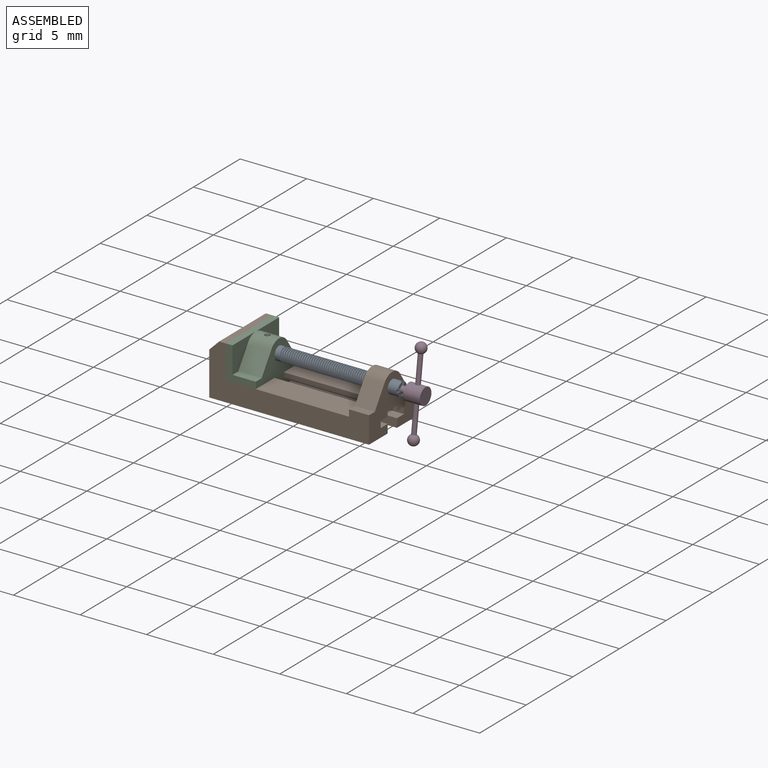
[diagram: assembled view]
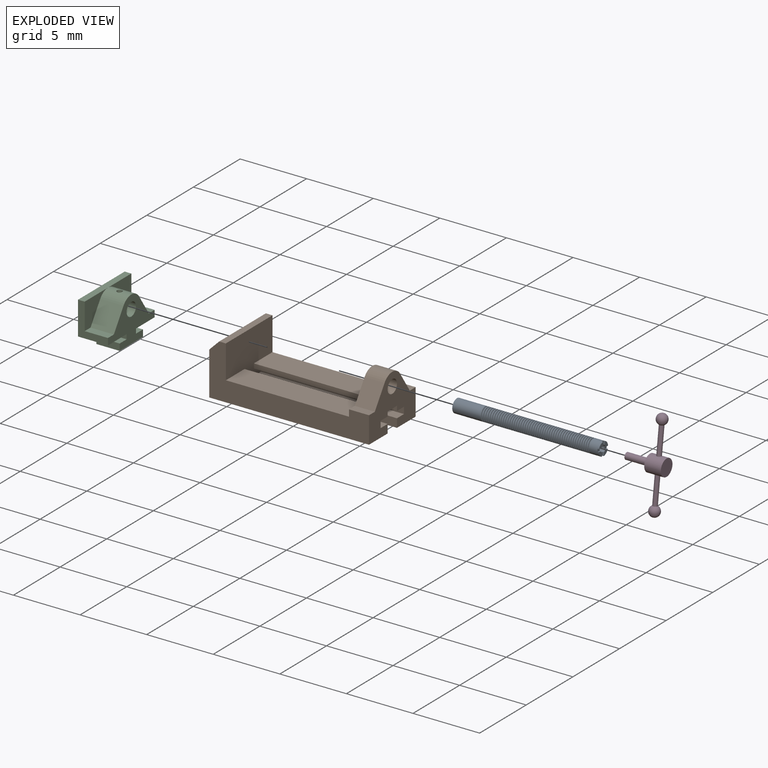
[diagram: exploded view]
GUIDED TOUR — MATED ASSEMBLY (Onshape document 5d08d16b54162cd27bfd7267, AutoMate assembly 5d08d16b54162cd27bfd7267_589e3b4b77a5842be3f8a55e_1819c7f877d3e1bd77064605_default)

This assembly has 4 components, labeled P0..P3 below (a component is one placed occurrence of a part; the same part can appear more than once), held together by 3 mates. A mate is a constraint between two components; its type names the relative motion it leaves free:
  FASTENED — locks the two components together rigidly (no relative motion),
  REVOLUTE — leaves rotation about the listed axis free (a hinge),
  SLIDER — leaves translation along the listed axis free.
Axis/direction vectors are unit vectors and 'through' points are millimeter coordinates, both in the assembly's world frame.

MATES
  1. SLIDER "Slider 1": P1 <-> P2, axis (-1.000, 0.000, 0.000) through (-4.62, -0.62, 0.49) mm
  2. FASTENED "Fastened 1": P3 <-> P0, direction (1.000, 0.000, 0.000) through (6.50, 1.88, 1.99) mm
  3. REVOLUTE "Revolute 1": P2 <-> P0, axis (-1.000, 0.000, 0.000) through (-4.13, 1.88, 1.99) mm

ASSEMBLY ORDER
  1. P1 — the base component [order verified]
  2. P0 [order verified]
  3. P2 [order verified]
  4. P3 [order verified]
(P2 verified with a relaxed clearance tolerance: the source model stores slight part interference there.)
Order-tag legend:
  [order verified] — this step's position reverses a verified removal order: the component was checked to insert without passing through the ones already placed.

Of the 4 components, 3 carry the full construction recipe — the FeatureScript program that regenerates the part's solid from scratch; the rest are supplied as boundary geometry only.
Each toured component is shown spotlighted twice — in the assembled view, then in the exploded view, where a leader line traces a displaced component back to its assembled socket (saturated green if recipe-attached, orange if geometry-only; every other component desaturated gray) — followed by its recipe or geometry summary and the mates that hold it.
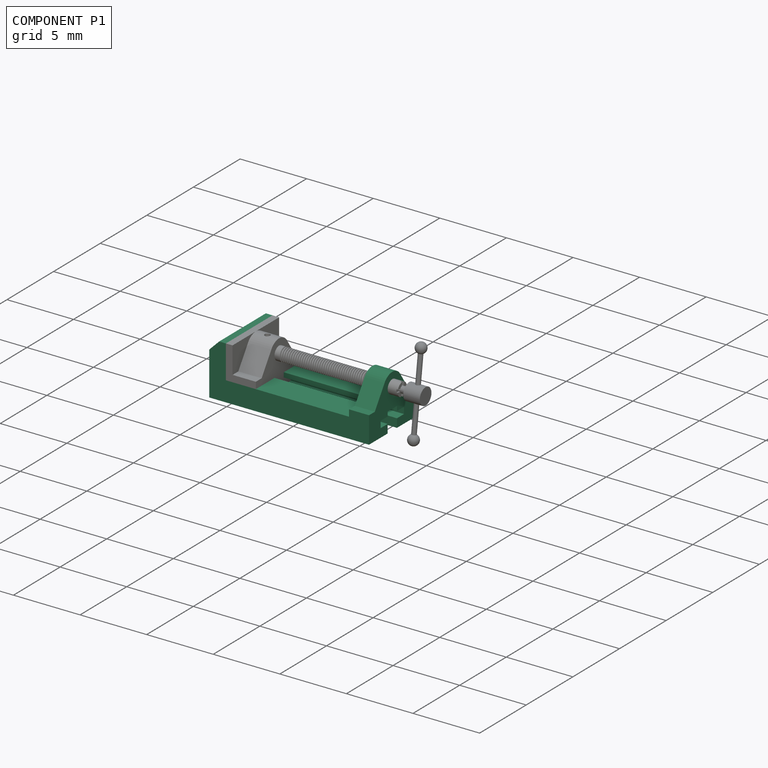
[diagram: component P1 — assembled]
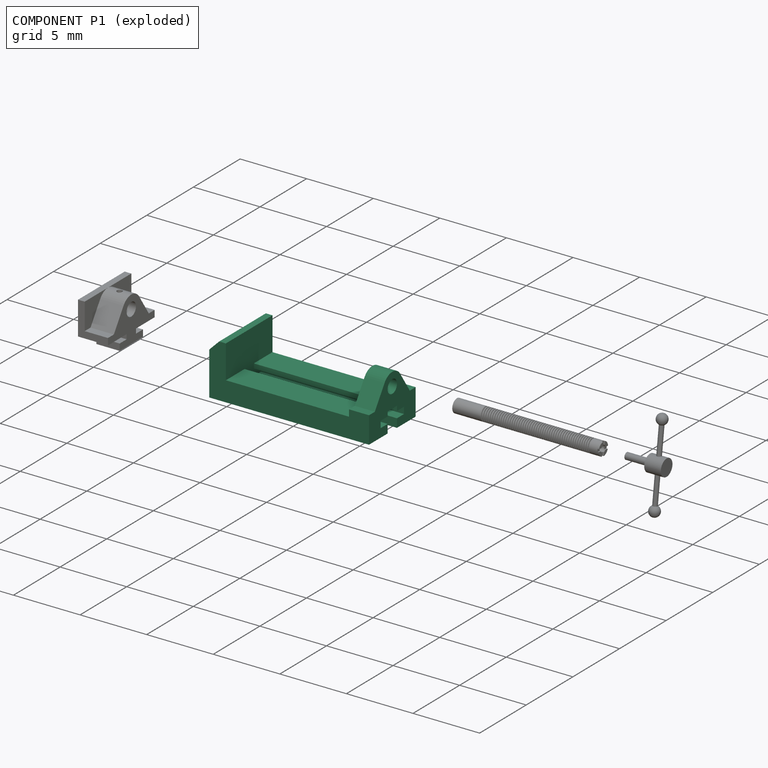
[diagram: component P1 — exploded]
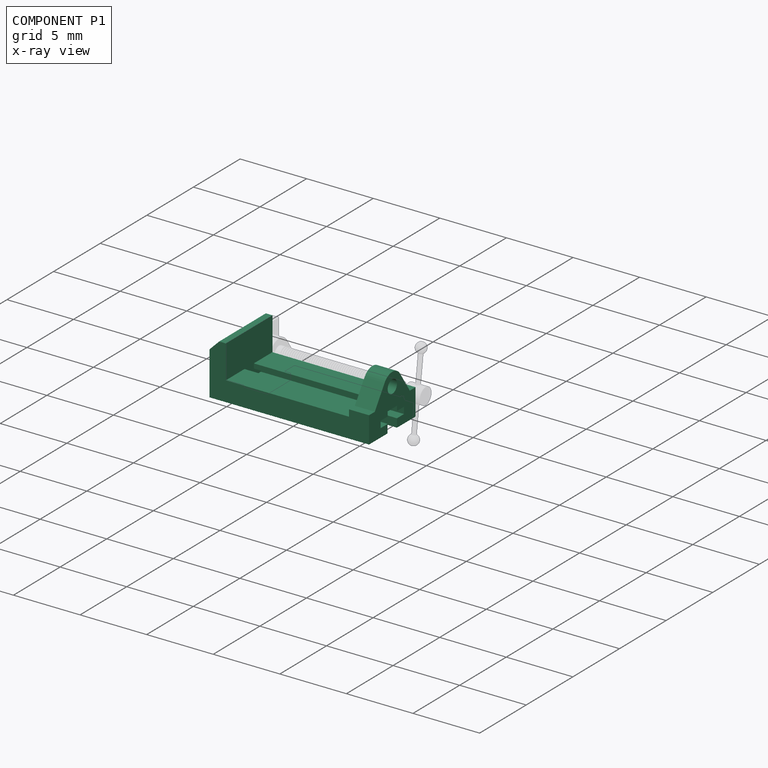
[diagram: component P1 — x-ray view]
COMPONENT P1 — recipe-attached (CADFS 00304340, mesh-verified: the recipe's output STEP matches this component's geometry to below the mesh-comparison resolution (tessellation chordal tolerance ~0.0204 mm)).
Held by: SLIDER mate "Slider 1" to P2.
Construction recipe (FeatureScript — the CAD program that rebuilds this solid; sketch coordinates are in the units given by the * unit suffixes, e.g. mm):

FeatureScript 1511;
import(path : "onshape/std/geometry.fs", version : "1511.0");
import(path : "onshape/std/common.fs", version : "1511.0");
const mm = millimeter;
const VERTEX = EntityType.VERTEX;
const EDGE = EntityType.EDGE;
const FACE = EntityType.FACE;
const BODY = EntityType.BODY;
function v(x, y){return vector(x, y);}
function OD(order){return orderDisambiguation(order);}
function OSD(set){return originalSetDisambiguation(set);}
function TD(topology){return topologyDisambiguation(topology);}
function TDD(query){return trueDependencyDisambiguation(query);}
function sQuery(a, b, c) {return sketchEntityQuery(a, b, c);}

annotation { "Feature Type Name" : "Feature", "Feature Type Description" : "" }
export const myFeature = defineFeature(function(context is Context, id is Id, definition is map)
    precondition{}
    {
        {
            var Q0;
            Q0=qCreatedBy(makeId("Right.planeOp"),FACE);
            var sketch = newSketch(context, id + "F0", { "sketchPlane" : qUnion([Q0])});
            skLineSegment(sketch, "E0.bottom", {"start": v(0, 0) * mm, "end": v(5, 0) * mm});
            skLineSegment(sketch, "E0.top", {"start": v(0, 1.5) * mm, "end": v(5, 1.5) * mm});
            skLineSegment(sketch, "E0.left", {"start": v(0, 0) * mm, "end": v(0, 1.5) * mm});
            skLineSegment(sketch, "E0.right", {"start": v(5, 0) * mm, "end": v(5, 1.5) * mm});
            skLineSegment(sketch, "E1", {"start": v(2, 0) * mm, "end": v(2, 0.65) * mm});
            skLineSegment(sketch, "E2", {"start": v(2, 0.65) * mm, "end": v(1.25, 0.65) * mm});
            skLineSegment(sketch, "E3", {"start": v(1.25, 0.65) * mm, "end": v(1.25, 1.15) * mm});
            skLineSegment(sketch, "E4", {"start": v(1.25, 1.15) * mm, "end": v(2, 1.15) * mm});
            skLineSegment(sketch, "E5", {"start": v(2, 1.15) * mm, "end": v(2, 1.5) * mm});
            skLineSegment(sketch, "E6", {"start": v(3, 1.5) * mm, "end": v(3, 1.15) * mm});
            skLineSegment(sketch, "E7", {"start": v(3, 1.15) * mm, "end": v(3.75, 1.15) * mm});
            skLineSegment(sketch, "E8", {"start": v(3.75, 1.15) * mm, "end": v(3.75, 0.65) * mm});
            skLineSegment(sketch, "E9", {"start": v(3.75, 0.65) * mm, "end": v(3, 0.65) * mm});
            skLineSegment(sketch, "E10", {"start": v(3, 0.65) * mm, "end": v(3, 0) * mm});
            skLineSegment(sketch, "E11", {"start": v(2.5, 1.5) * mm, "end": v(2.5, 0) * mm, "construction": true});
            skSolve(sketch);
        }
        {
            var Q0;
            Q0=makeQuery(id+"F0.imprint","IMPRINT",FACE,{"disambiguationData":[TD([[makeQuery(id+"F0.imprint","IMPRINT",EDGE,{"derivedFrom":sQuery(id+"F0.wireOp",EDGE,"E0.top")}),-1.0]])]});
            extrude(context, id + "F1", {"entities" : qUnion([Q0]), "endBound" : BoundingType.SYMMETRIC, "depth" : 9.25 * mm});
        }
        {
            var Q0;
            Q0=makeQuery(id+"F1.opExtrude","CAP_FACE",FACE,{"disambiguationData":[OSD([sQuery(id+"F0.wireOp",EDGE,"E0.bottom"),sQuery(id+"F0.wireOp",EDGE,"E0.top"),sQuery(id+"F0.wireOp",EDGE,"E0.left"),sQuery(id+"F0.wireOp",EDGE,"E1"),sQuery(id+"F0.wireOp",EDGE,"E2"),sQuery(id+"F0.wireOp",EDGE,"E3"),sQuery(id+"F0.wireOp",EDGE,"E4"),sQuery(id+"F0.wireOp",EDGE,"E5")])],"isStart":false});
            var sketch = newSketch(context, id + "F2", { "sketchPlane" : qUnion([Q0])});
            skLineSegment(sketch, "E12.bottom", {"start": v(0, 0) * mm, "end": v(5, 0) * mm});
            skLineSegment(sketch, "E12.top", {"start": v(0, 2) * mm, "end": v(0.63, 2) * mm});
            skLineSegment(sketch, "E12.left", {"start": v(0, 0) * mm, "end": v(0, 2) * mm});
            skLineSegment(sketch, "E12.right", {"start": v(5, 0) * mm, "end": v(5, 2) * mm});
            skLineSegment(sketch, "E13", {"start": v(2, 1.15) * mm, "end": v(2, 1.5) * mm});
            skLineSegment(sketch, "E14", {"start": v(2, 0) * mm, "end": v(2, 0.65) * mm});
            skLineSegment(sketch, "E15", {"start": v(2, 0.65) * mm, "end": v(1.25, 0.65) * mm});
            skLineSegment(sketch, "E16", {"start": v(1.25, 0.65) * mm, "end": v(1.25, 1.15) * mm});
            skLineSegment(sketch, "E17", {"start": v(1.25, 1.15) * mm, "end": v(2, 1.15) * mm});
            skPoint(sketch, "E18.0", {"position": v(3, 0) * mm});
            skPoint(sketch, "E19.0", {"position": v(3, 0.65) * mm});
            skPoint(sketch, "E20.0", {"position": v(3.75, 0.65) * mm});
            skPoint(sketch, "E21.0", {"position": v(3.75, 1.15) * mm});
            skPoint(sketch, "E22.0", {"position": v(3, 1.15) * mm});
            skLineSegment(sketch, "E23", {"start": v(3, 0) * mm, "end": v(3, 0.65) * mm});
            skLineSegment(sketch, "E24", {"start": v(3.75, 0.65) * mm, "end": v(3.75, 1.15) * mm});
            skLineSegment(sketch, "E25", {"start": v(3, 1.15) * mm, "end": v(3, 1.5) * mm});
            skLineSegment(sketch, "E26", {"start": v(3, 1.15) * mm, "end": v(3.75, 1.15) * mm});
            skLineSegment(sketch, "E27", {"start": v(3.75, 0.65) * mm, "end": v(3, 0.65) * mm});
            skLineSegment(sketch, "E28", {"start": v(0.63, 2) * mm, "end": v(1.67, 3.56) * mm});
            skLineSegment(sketch, "E29", {"start": v(4.37, 2) * mm, "end": v(3.33, 3.56) * mm});
            skArc(sketch, "E30", {"start": v(3.33, 3.56) * mm, "mid": v(2.5, 4) * mm, "end": v(1.67, 3.56) * mm});
            skCircle(sketch, "E31", {"center": v(2.5, 3) * mm, "radius": 0.5 * mm});
            skLineSegment(sketch, "E32", {"start": v(2, 1.5) * mm, "end": v(3, 1.5) * mm});
            skLineSegment(sketch, "E33.trimOffspring", {"start": v(4.38, 2) * mm, "end": v(5, 2) * mm});
            skSolve(sketch);
        }
        {
            var Q0;
            {var subQ0=sQuery(id+"F2.wireOp",EDGE,"E12.right");Q0=makeQuery(id+"F2.imprint","IMPRINT",FACE,{"disambiguationData":[TD([[makeQuery(id+"F2.imprint","IMPRINT",EDGE,{"derivedFrom":subQ0}),1.0]])]});}
            var Q1;
            {var subQ4=sQuery(id+"F2.wireOp",EDGE,"E14");Q1=makeQuery(id+"F2.imprint","IMPRINT",FACE,{"disambiguationData":[TD([[makeQuery(id+"F2.imprint","IMPRINT",EDGE,{"derivedFrom":subQ4}),1.0]])]});}
            var Q2;
            {var subQ5=sQuery(id+"F0.wireOp",EDGE,"E0.top");var subQ6=makeQuery(id+"F1.opExtrude","CAP_EDGE",EDGE,{"disambiguationData":[OSD([subQ5]),TDD([makeQuery(id+"F0.imprint","IMPRINT",EDGE,{"disambiguationData":[TD([[makeQuery(id+"F0.imprint","INTERSECT",VERTEX,{"derivedFrom":[subQ5,sQuery(id+"F0.wireOp",EDGE,"E0.left")]}),-1.0]])],"derivedFrom":subQ5})])],"isStart":false});Q2=makeQuery(id+"F2.imprint","IMPRINT",FACE,{"disambiguationData":[TD([[makeQuery(id+"F2.imprint","IMPRINT",EDGE,{"derivedFrom":subQ6}),1.0]])]});}
            extrude(context, id + "F3", {"entities" : qUnion([Q0, Q1, Q2]), "operationType" : NewBodyOperationType.ADD, "depth" : 1.5 * mm});
        }
        {
            var Q0;
            Q0=makeQuery(id+"F1.opExtrude","CAP_FACE",FACE,{"disambiguationData":[OSD([sQuery(id+"F0.wireOp",EDGE,"E0.bottom"),sQuery(id+"F0.wireOp",EDGE,"E0.top"),sQuery(id+"F0.wireOp",EDGE,"E0.left"),sQuery(id+"F0.wireOp",EDGE,"E1"),sQuery(id+"F0.wireOp",EDGE,"E2"),sQuery(id+"F0.wireOp",EDGE,"E3"),sQuery(id+"F0.wireOp",EDGE,"E4"),sQuery(id+"F0.wireOp",EDGE,"E5")])],"isStart":true});
            var sketch = newSketch(context, id + "F4", { "sketchPlane" : qUnion([Q0])});
            skPoint(sketch, "E34.0", {"position": v(-5, 0) * mm});
            skLineSegment(sketch, "E35.0", {"start": v(-5, 0) * mm, "end": v(-5, 1.5) * mm});
            skLineSegment(sketch, "E36", {"start": v(0, 0) * mm, "end": v(0, 4) * mm});
            skLineSegment(sketch, "E37", {"start": v(0, 4) * mm, "end": v(-5, 4) * mm});
            skLineSegment(sketch, "E38", {"start": v(-5, 4) * mm, "end": v(-5, 0) * mm});
            skLineSegment(sketch, "E39", {"start": v(-5, 0) * mm, "end": v(0, 0) * mm});
            skSolve(sketch);
        }
        {
            var Q0;
            Q0 = qSketchRegion(id + "F4", true);
            extrude(context, id + "F5", {"entities" : qUnion([Q0]), "operationType" : NewBodyOperationType.ADD, "depth" : 1.25 * mm});
        }
        {
            var Q0;
            Q0=makeQuery(id+"F5.opExtrude","CAP_EDGE",EDGE,{"disambiguationData":[OSD([sQuery(id+"F4.wireOp",EDGE,"E37")])],"isStart":false});
            chamfer(context, id + "F6", {"entities" : qUnion([Q0]), "chamferType" : ChamferType.OFFSET_ANGLE, "width" : .75 * mm, "oppositeDirection" : false, "angle" : 45 * degree, "tangentPropagation" : true});
        }
    });
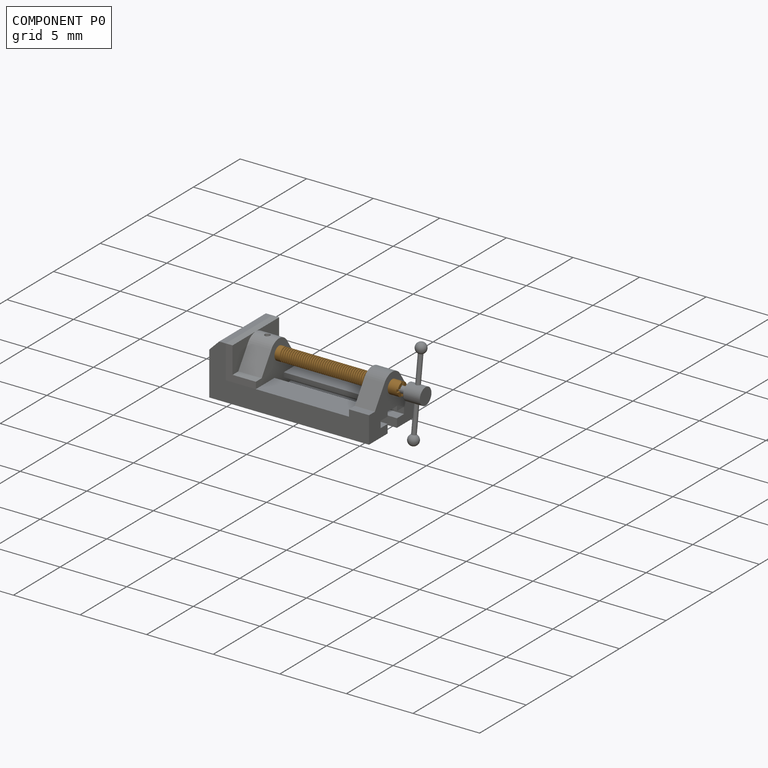
[diagram: component P0 — assembled]
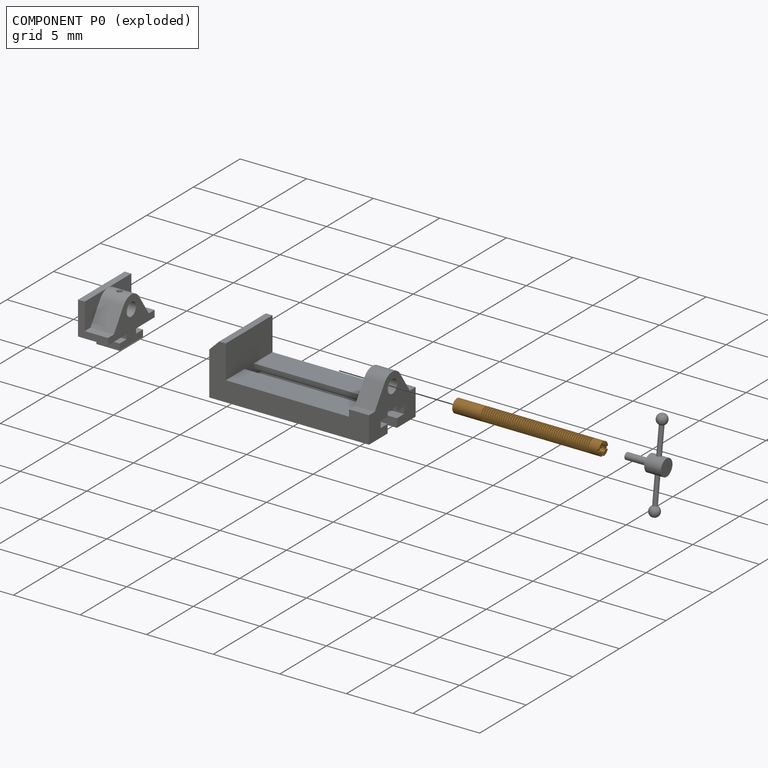
[diagram: component P0 — exploded]
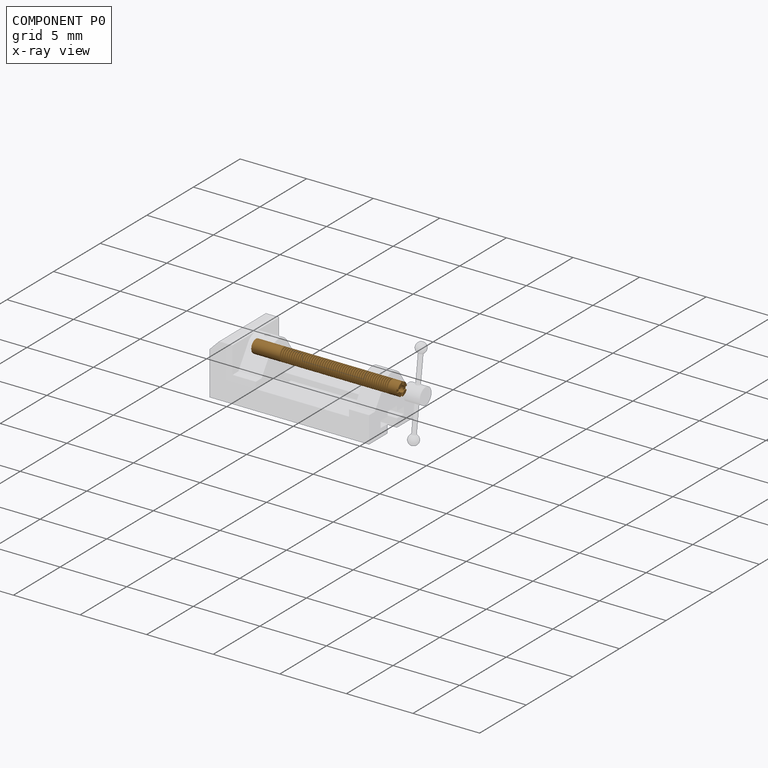
[diagram: component P0 — x-ray view]
COMPONENT P0 — geometry summary (no construction recipe available for this part):
  bounding box: 11.0 x 1.2 x 1.0 mm
  B-rep topology: 1 solid, 74 faces, 432 edges
  volume: 8 mm^3 (58% of its bounding box)
Held by: FASTENED mate "Fastened 1" to P3; REVOLUTE mate "Revolute 1" to P2.
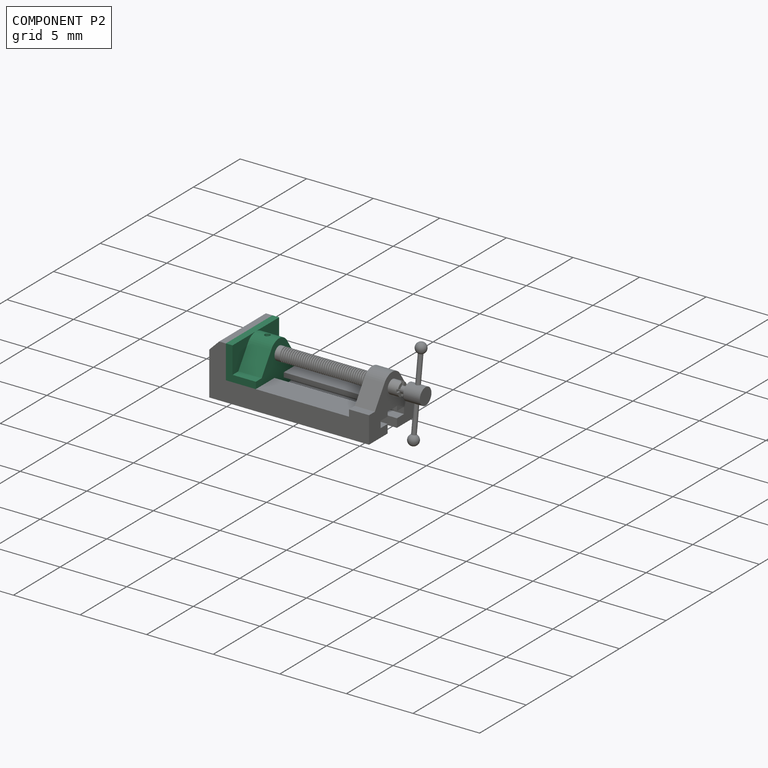
[diagram: component P2 — assembled]
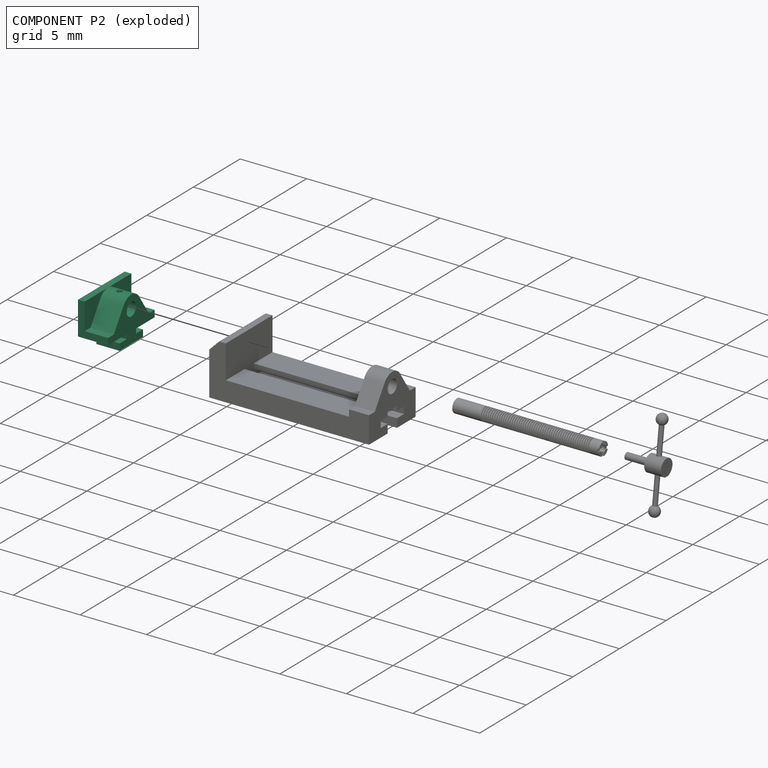
[diagram: component P2 — exploded]
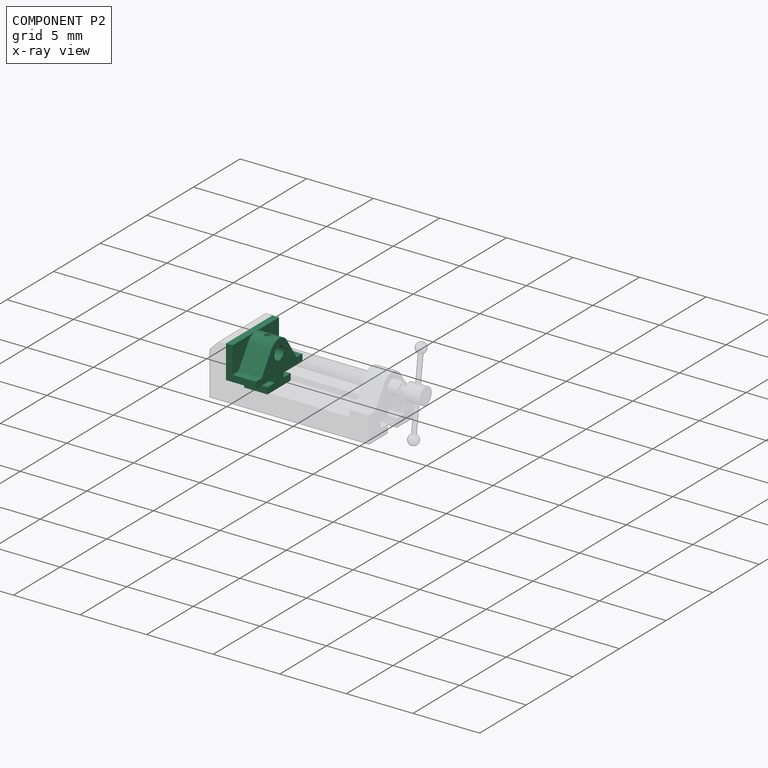
[diagram: component P2 — x-ray view]
COMPONENT P2 — recipe-attached (CADFS 00304341, mesh-verified: the recipe's output STEP matches this component's geometry to below the mesh-comparison resolution (tessellation chordal tolerance ~0.00964 mm)).
Held by: SLIDER mate "Slider 1" to P1; REVOLUTE mate "Revolute 1" to P0.
Construction recipe (FeatureScript — the CAD program that rebuilds this solid; sketch coordinates are in the units given by the * unit suffixes, e.g. mm):

FeatureScript 1511;
import(path : "onshape/std/geometry.fs", version : "1511.0");
import(path : "onshape/std/common.fs", version : "1511.0");
const mm = millimeter;
const VERTEX = EntityType.VERTEX;
const EDGE = EntityType.EDGE;
const FACE = EntityType.FACE;
const BODY = EntityType.BODY;
function v(x, y){return vector(x, y);}
function OD(order){return orderDisambiguation(order);}
function OSD(set){return originalSetDisambiguation(set);}
function TD(topology){return topologyDisambiguation(topology);}
function TDD(query){return trueDependencyDisambiguation(query);}
function sQuery(a, b, c) {return sketchEntityQuery(a, b, c);}

annotation { "Feature Type Name" : "Feature", "Feature Type Description" : "" }
export const myFeature = defineFeature(function(context is Context, id is Id, definition is map)
    precondition{}
    {
        {
            var Q0;
            Q0=qCreatedBy(makeId("Front.planeOp"),FACE);
            var sketch = newSketch(context, id + "F0", { "sketchPlane" : qUnion([Q0])});
            skCircle(sketch, "E0", {"center": v(0, 0) * mm, "radius": 0.5 * mm});
            skLineSegment(sketch, "E1", {"start": v(-2.5, -1.5) * mm, "end": v(-0.5, -1.5) * mm});
            skLineSegment(sketch, "E2", {"start": v(-0.5, -1.5) * mm, "end": v(-0.5, -1.85) * mm});
            skLineSegment(sketch, "E3", {"start": v(-0.5, -1.85) * mm, "end": v(-1.25, -1.85) * mm});
            skLineSegment(sketch, "E4", {"start": v(-1.25, -1.85) * mm, "end": v(-1.25, -2.35) * mm});
            skLineSegment(sketch, "E5", {"start": v(-1.25, -2.35) * mm, "end": v(0, -2.35) * mm});
            skLineSegment(sketch, "E6", {"start": v(-2.5, -1.5) * mm, "end": v(-2.5, -1) * mm});
            skLineSegment(sketch, "E7", {"start": v(-2.5, -1) * mm, "end": v(-1.88, -1) * mm});
            skLineSegment(sketch, "E8", {"start": v(-1.88, -1) * mm, "end": v(-0.83, 0.56) * mm});
            skLineSegment(sketch, "E9.MirrorCS", {"start": v(1.25, -2.35) * mm, "end": v(0, -2.35) * mm});
            skLineSegment(sketch, "E10.MirrorCS", {"start": v(1.25, -1.85) * mm, "end": v(1.25, -2.35) * mm});
            skLineSegment(sketch, "E11.MirrorCS", {"start": v(0.5, -1.5) * mm, "end": v(0.5, -1.85) * mm});
            skLineSegment(sketch, "E12.MirrorCS", {"start": v(0.5, -1.85) * mm, "end": v(1.25, -1.85) * mm});
            skLineSegment(sketch, "E13.MirrorCS", {"start": v(1.88, -1) * mm, "end": v(0.83, 0.56) * mm});
            skLineSegment(sketch, "E14.MirrorCS", {"start": v(2.5, -1) * mm, "end": v(1.88, -1) * mm});
            skLineSegment(sketch, "E15.MirrorCS", {"start": v(2.5, -1.5) * mm, "end": v(0.5, -1.5) * mm});
            skLineSegment(sketch, "E16.MirrorCS", {"start": v(2.5, -1.5) * mm, "end": v(2.5, -1) * mm});
            skArc(sketch, "E17", {"start": v(-0.83, 0.56) * mm, "mid": v(0, 1) * mm, "end": v(0.83, 0.56) * mm});
            skSolve(sketch);
        }
        {
            var Q0;
            Q0 = qSketchRegion(id + "F0", true);
            extrude(context, id + "F1", {"entities" : qUnion([Q0]), "depth" : (2.25 - .5) * mm});
        }
        {
            var Q0;
            Q0=makeQuery(id+"F1.opExtrude","CAP_FACE",FACE,{"disambiguationData":[OSD([sQuery(id+"F0.wireOp",EDGE,"E0"),sQuery(id+"F0.wireOp",EDGE,"E1"),sQuery(id+"F0.wireOp",EDGE,"E2"),sQuery(id+"F0.wireOp",EDGE,"E3"),sQuery(id+"F0.wireOp",EDGE,"E4"),sQuery(id+"F0.wireOp",EDGE,"E5"),sQuery(id+"F0.wireOp",EDGE,"E6"),sQuery(id+"F0.wireOp",EDGE,"E7"),sQuery(id+"F0.wireOp",EDGE,"E8"),sQuery(id+"F0.wireOp",EDGE,"E9.MirrorCS"),sQuery(id+"F0.wireOp",EDGE,"E10.MirrorCS"),sQuery(id+"F0.wireOp",EDGE,"E11.MirrorCS"),sQuery(id+"F0.wireOp",EDGE,"E12.MirrorCS"),sQuery(id+"F0.wireOp",EDGE,"E13.MirrorCS"),sQuery(id+"F0.wireOp",EDGE,"E14.MirrorCS"),sQuery(id+"F0.wireOp",EDGE,"E15.MirrorCS"),sQuery(id+"F0.wireOp",EDGE,"E16.MirrorCS"),sQuery(id+"F0.wireOp",EDGE,"E17")])],"isStart":true});
            var sketch = newSketch(context, id + "F2", { "sketchPlane" : qUnion([Q0])});
            skLineSegment(sketch, "E18.bottom", {"start": v(-2.5, -1.5) * mm, "end": v(2.5, -1.5) * mm});
            skLineSegment(sketch, "E18.top", {"start": v(-2.5, 1) * mm, "end": v(2.5, 1) * mm});
            skLineSegment(sketch, "E18.left", {"start": v(-2.5, -1.5) * mm, "end": v(-2.5, 1) * mm});
            skLineSegment(sketch, "E18.right", {"start": v(2.5, -1.5) * mm, "end": v(2.5, 1) * mm});
            skSolve(sketch);
        }
        {
            var Q0;
            Q0 = qSketchRegion(id + "F2", true);
            extrude(context, id + "F3", {"entities" : qUnion([Q0]), "operationType" : NewBodyOperationType.ADD, "depth" : .5 * mm});
        }
        {
            var Q0;
            Q0=makeQuery(id+"F1.opExtrude","SWEPT_FACE",FACE,{"disambiguationData":[OSD([sQuery(id+"F0.wireOp",EDGE,"E5"),sQuery(id+"F0.wireOp",EDGE,"E9.MirrorCS")])]});
            cPlane(context, id + "F4", {"entities" : qUnion([Q0]), "cplaneType" : CPlaneType.OFFSET, "offset" : 3.35 * mm, "oppositeDirection" : true, "width" : 150 * mm, "height" : 150 * mm});
        }
        {
            var Q0;
            Q0=qCreatedBy(id+"F4.planeOp",FACE);
            var sketch = newSketch(context, id + "F5", { "sketchPlane" : qUnion([Q0])});
            skCircle(sketch, "E19", {"center": v(0, 0.87) * mm, "radius": 0.2 * mm});
            skSolve(sketch);
        }
        {
            var Q0;
            Q0 = qSketchRegion(id + "F5", true);
            extrude(context, id + "F6", {"entities" : qUnion([Q0]), "operationType" : NewBodyOperationType.REMOVE, "endBound" : BoundingType.UP_TO_NEXT, "depth" : 25 * mm});
        }
    });
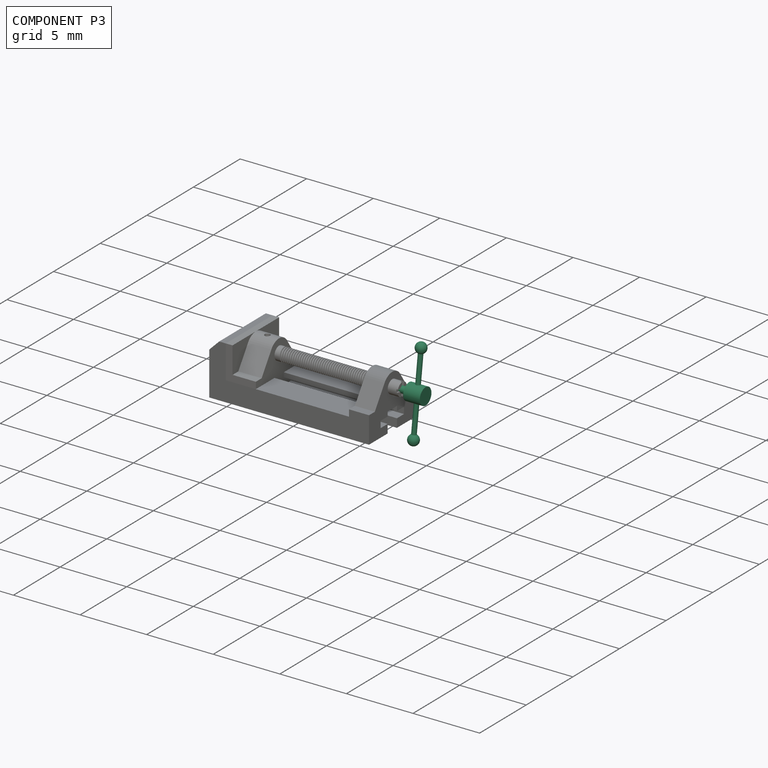
[diagram: component P3 — assembled]
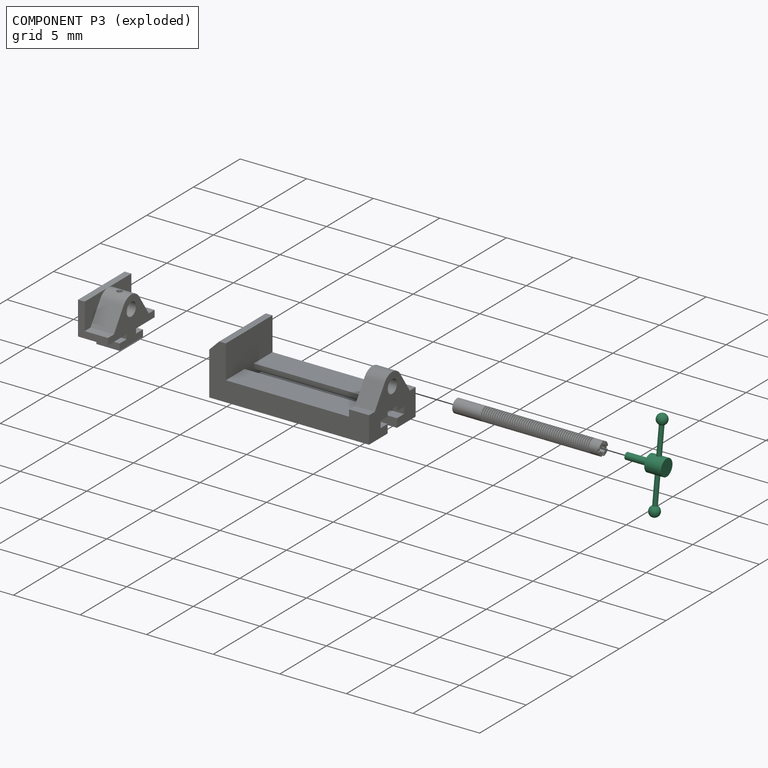
[diagram: component P3 — exploded]
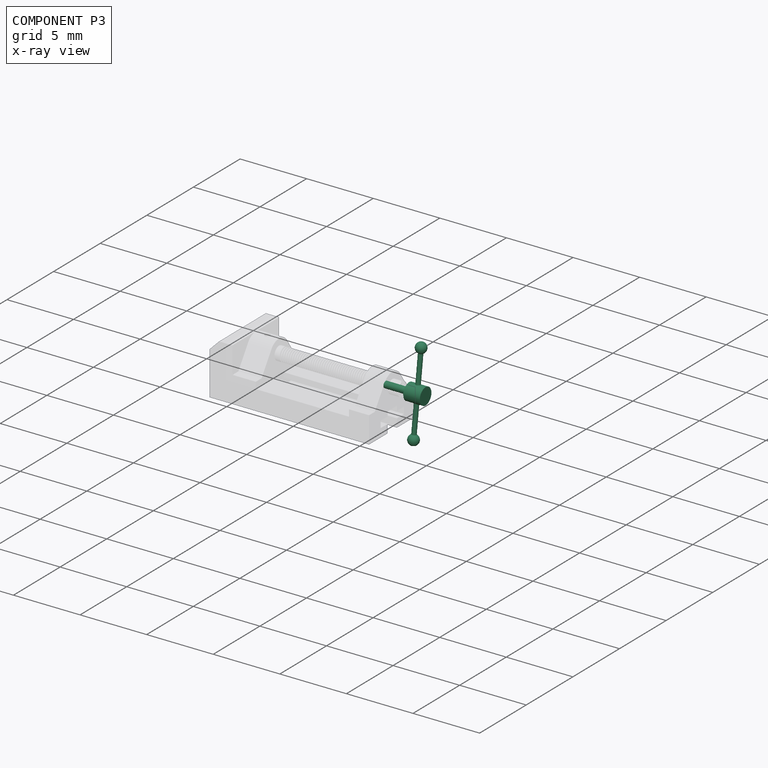
[diagram: component P3 — x-ray view]
COMPONENT P3 — recipe-attached (CADFS 00304343, mesh-verified: the recipe's output STEP matches this component's geometry to below the mesh-comparison resolution (tessellation chordal tolerance ~0.0113 mm)).
Held by: FASTENED mate "Fastened 1" to P0.
Construction recipe (FeatureScript — the CAD program that rebuilds this solid; sketch coordinates are in the units given by the * unit suffixes, e.g. mm):

FeatureScript 1511;
import(path : "onshape/std/geometry.fs", version : "1511.0");
import(path : "onshape/std/common.fs", version : "1511.0");
const mm = millimeter;
const VERTEX = EntityType.VERTEX;
const EDGE = EntityType.EDGE;
const FACE = EntityType.FACE;
const BODY = EntityType.BODY;
function v(x, y){return vector(x, y);}
function OD(order){return orderDisambiguation(order);}
function OSD(set){return originalSetDisambiguation(set);}
function TD(topology){return topologyDisambiguation(topology);}
function TDD(query){return trueDependencyDisambiguation(query);}
function sQuery(a, b, c) {return sketchEntityQuery(a, b, c);}

annotation { "Feature Type Name" : "Feature", "Feature Type Description" : "" }
export const myFeature = defineFeature(function(context is Context, id is Id, definition is map)
    precondition{}
    {
        {
            var Q0;
            Q0=qCreatedBy(makeId("Front.planeOp"),FACE);
            var sketch = newSketch(context, id + "F0", { "sketchPlane" : qUnion([Q0])});
            skPoint(sketch, "E0.startSnap0", {"position": v(32, 0) * mm});
            skLineSegment(sketch, "E1", {"start": v(-3, 0) * mm, "end": v(3, 0) * mm});
            skLineSegment(sketch, "E2", {"start": v(-3, 0) * mm, "end": v(-3.4, 0) * mm});
            skArc(sketch, "E3", {"start": v(-3.4, 0) * mm, "mid": v(-3, 0.4) * mm, "end": v(-2.6, 0) * mm});
            skLineSegment(sketch, "E4", {"start": v(3, 0) * mm, "end": v(3.4, 0) * mm});
            skArc(sketch, "E5", {"start": v(3.4, 0) * mm, "mid": v(3, 0.4) * mm, "end": v(2.6, 0) * mm});
            skSolve(sketch);
        }
        {
            var Q0;
            Q0=qCreatedBy(makeId("Right.planeOp"),FACE);
            var sketch = newSketch(context, id + "F1", { "sketchPlane" : qUnion([Q0])});
            skCircle(sketch, "E6", {"center": v(0, 0) * mm, "radius": 0.17 * mm});
            skSolve(sketch);
        }
        {
            var Q0;
            {var subQ0=sQuery(id+"F0.wireOp",EDGE,"E2");Q0=makeQuery(id+"F0.imprint","IMPRINT",FACE,{"disambiguationData":[TD([[makeQuery(id+"F0.imprint","IMPRINT",EDGE,{"derivedFrom":subQ0}),-1.0]])]});}
            var Q1;
            Q1=sQuery(id+"F0.wireOp",EDGE,"E2");
            revolve(context, id + "F2", {"entities" : qUnion([Q0]), "axis" : qUnion([Q1]), "revolveType" : RevolveType.FULL});
        }
        {
            var Q0;
            {var subQ0=sQuery(id+"F0.wireOp",EDGE,"E2");Q0=makeQuery(id+"F0.imprint","IMPRINT",FACE,{"disambiguationData":[TD([[makeQuery(id+"F0.imprint","IMPRINT",EDGE,{"derivedFrom":subQ0}),-1.0]])]});}
            var Q1;
            {var subQ0=sQuery(id+"F0.wireOp",EDGE,"E4");Q1=makeQuery(id+"F0.imprint","IMPRINT",FACE,{"disambiguationData":[TD([[makeQuery(id+"F0.imprint","IMPRINT",EDGE,{"derivedFrom":subQ0}),1.0]])]});}
            var Q2;
            Q2=sQuery(id+"F0.wireOp",EDGE,"E4");
            revolve(context, id + "F3", {"entities" : qUnion([Q0, Q1]), "axis" : qUnion([Q2]), "revolveType" : RevolveType.FULL});
        }
        {
            var Q0;
            Q0=makeQuery(id+"F1.imprint","IMPRINT",FACE,{"disambiguationData":[TD([[makeQuery(id+"F1.imprint","IMPRINT",EDGE,{"derivedFrom":sQuery(id+"F1.wireOp",EDGE,"E6")}),1.0]])]});
            extrude(context, id + "F4", {"entities" : qUnion([Q0]), "operationType" : NewBodyOperationType.ADD, "endBound" : BoundingType.SYMMETRIC, "depth" : 6 * mm});
        }
        {
            var Q0;
            Q0=qCreatedBy(makeId("Top.planeOp"),FACE);
            cPlane(context, id + "F5", {"entities" : qUnion([Q0]), "cplaneType" : CPlaneType.OFFSET, "offset" : .625 * mm, "width" : 150 * mm, "height" : 150 * mm});
        }
        {
            var Q0;
            Q0=qCreatedBy(id+"F5.planeOp",FACE);
            var sketch = newSketch(context, id + "F6", { "sketchPlane" : qUnion([Q0])});
            skCircle(sketch, "E7", {"center": v(0, 0) * mm, "radius": 0.62 * mm});
            skSolve(sketch);
        }
        {
            var Q0;
            Q0 = qSketchRegion(id + "F6", true);
            extrude(context, id + "F7", {"entities" : qUnion([Q0]), "operationType" : NewBodyOperationType.ADD, "oppositeDirection" : true, "depth" : 1.25 * mm});
        }
        {
            var Q0;
            Q0=makeQuery(id+"F7.opExtrude","CAP_FACE",FACE,{"disambiguationData":[OSD([sQuery(id+"F6.wireOp",EDGE,"E7")])],"isStart":false});
            var sketch = newSketch(context, id + "F8", { "sketchPlane" : qUnion([Q0])});
            skCircle(sketch, "E8", {"center": v(0, 0) * mm, "radius": 0.25 * mm});
            skSolve(sketch);
        }
        {
            var Q0;
            Q0 = qSketchRegion(id + "F8", true);
            extrude(context, id + "F9", {"entities" : qUnion([Q0]), "operationType" : NewBodyOperationType.ADD, "depth" : (3 - 1.25) * mm});
        }
    });
PROVENANCE & LICENSES
Assembly (occurrences, transforms, mates, per-part STEP geometry): AutoMate dataset, Zenodo record 7776208, CC0.
Construction recipes: CADFS (HuggingFace VladPyatov/CADFS, CC-BY-4.0, layered over the ABC dataset), FeatureScript reconstruction programs keyed by ABC model id.
Join: ABC meta listings map ABC model id -> Onshape documentId; within a shared document, parts are matched by geometric signature (bounding-box dims + volume at 0.1% relative tolerance, exact B-rep face/solid counts).
Verification: 3 of this assembly's 4 components carry a recipe attachment, and every attachment is mesh-verified: the CADFS STEP and the AutoMate member STEP were compared as meshes in their shared local frame (symmetric sampled-point-to-mesh distance); worst across the 3 attachments: below the mesh-comparison resolution (tessellation chordal tolerance ~0.0204 mm) on a 14 mm part.
Renders: orthographic iso camera (az 35 / el 25); the floor grid conveys scale (grid pitch printed in each image; no ruler). In the exploded view each component is displaced by its stored offset vector: the offsets alone carry the explosion direction (mate normal/axis signs are not orientation cues and do not encode it), and separation distances are assigned per mate-chain, not proportionally to assembly-order depth.
